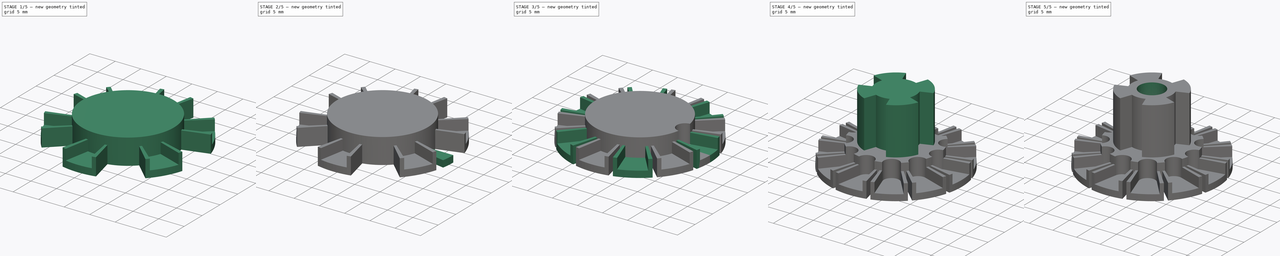
[diagram: build sequence overview — one tinted view per stage of 5, left to right]
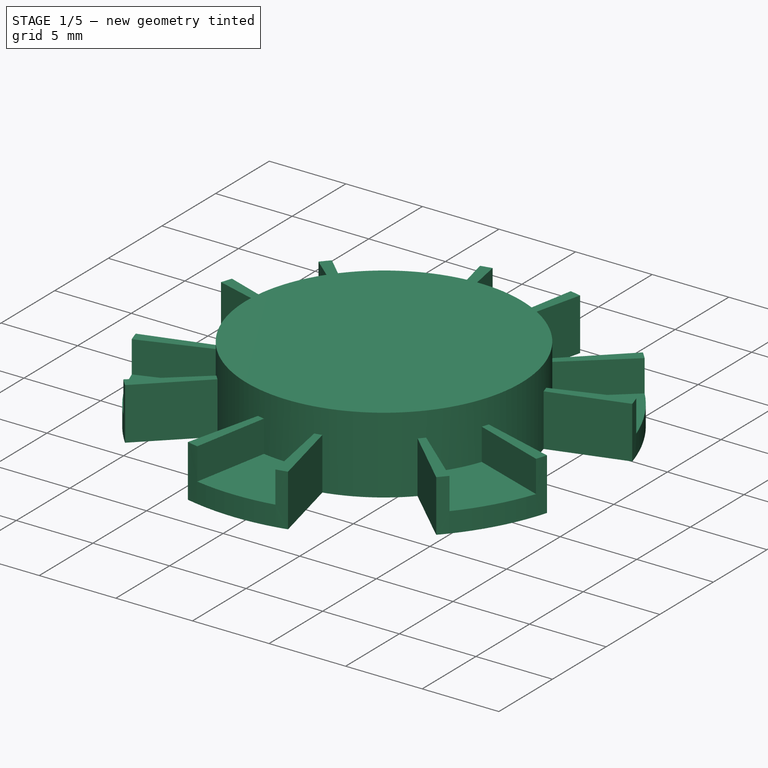
[diagram: stage 1 of 5 — iso view after this stage's code; geometry added in this stage tinted green]
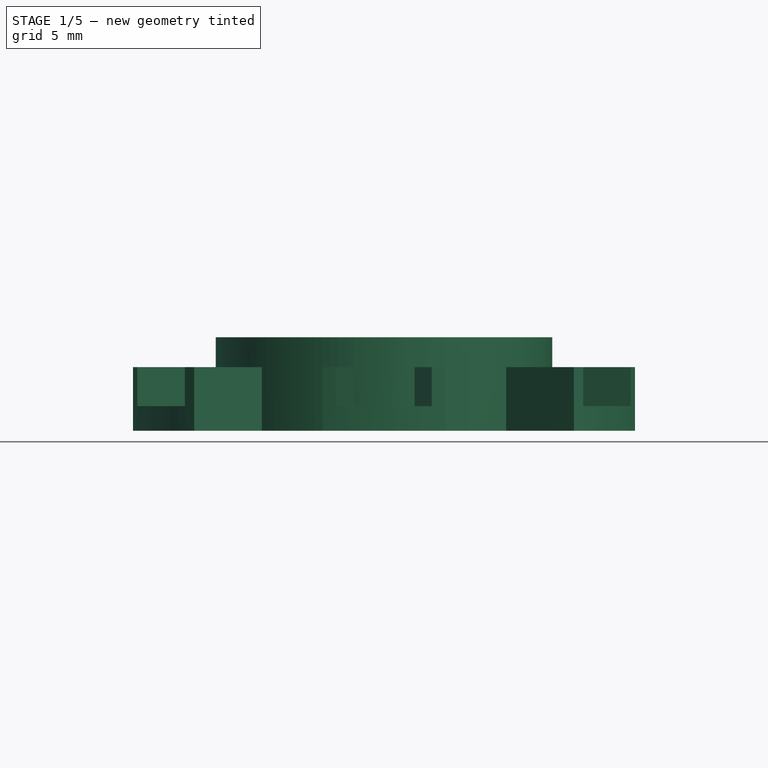
[diagram: stage 1 of 5 — front view after this stage's code; geometry added in this stage tinted green]
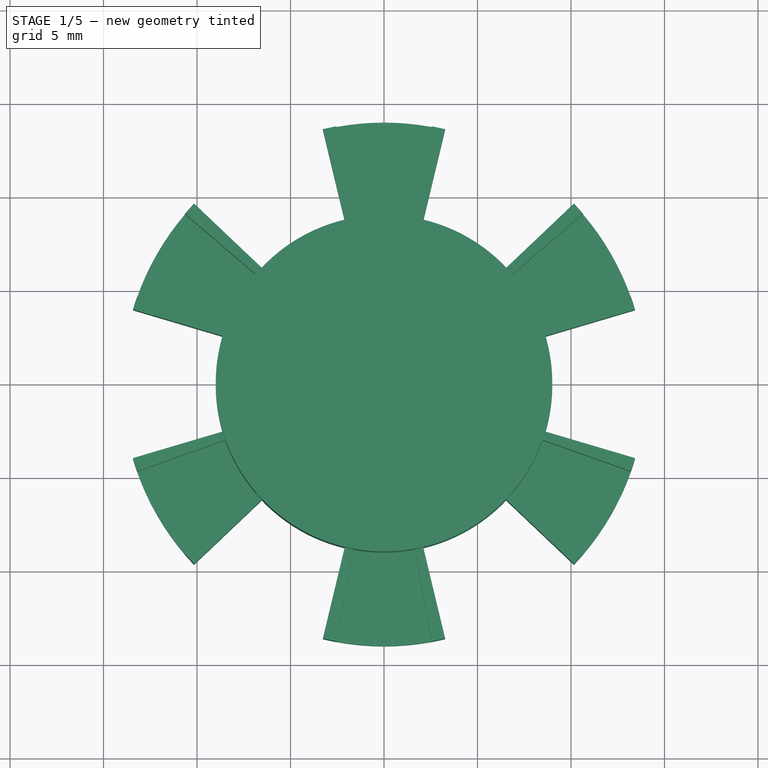
[diagram: stage 1 of 5 — top view after this stage's code; geometry added in this stage tinted green]
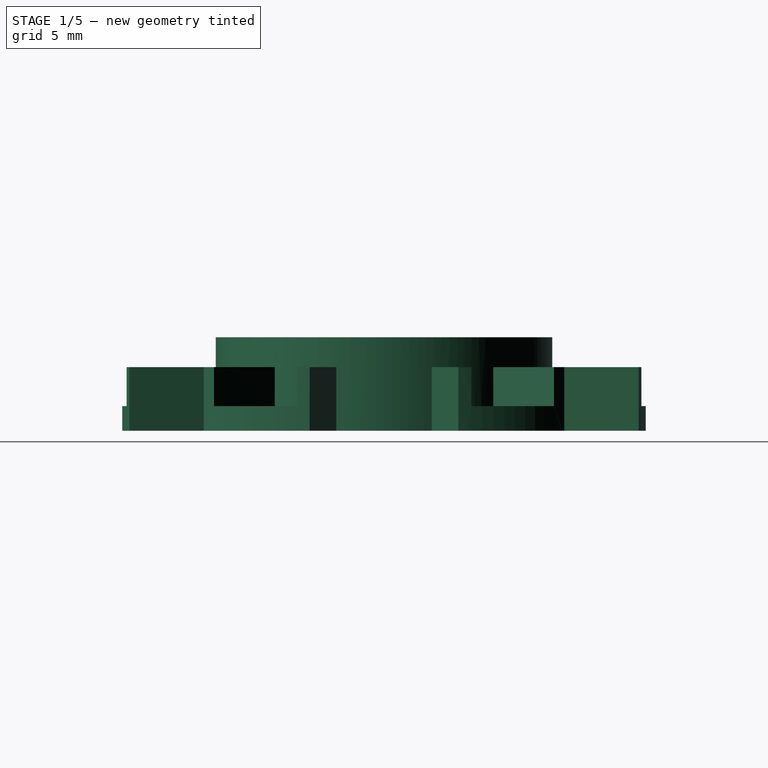
[diagram: stage 1 of 5 — right view after this stage's code; geometry added in this stage tinted green]
FCSTD DOCUMENT  (FreeCAD 2022.520R14555 (Git shallow))
Label: pulley
License: All rights reserved
LicenseURL: http://en.wikipedia.org/wiki/All_rights_reserved
objects: Sketcher::SketchObject×13, PartDesign::Mirrored×6, PartDesign::PolarPattern×6, PartDesign::Plane×5, PartDesign::Revolution×4, PartDesign::Groove×4, PartDesign::Pad×3, PartDesign::Body×2, Spreadsheet::Sheet×1, PartDesign::Hole×1, PartDesign::Pocket×1
note: 95 computed .brp shape members not serialized (recipe doc carries the construction recipe); baked Part::Feature solids carry a one-line shape summary decoded from their .brp

FEATURE [Spreadsheet::Sheet] Spreadsheet
  PythonMode = false
  ShowCells = 0
  TreeRank = 42
  cells = A1=teeth_num; B1(teeth_num)=6; S1=q; A2=joint_width; B2(joint_width)==2.5mm; A3=joint_ledge_angle; B3(joint_ledge_angle)=45; A4=joint_clearance; B4(joint_clearance)==0.2mm; A5=joint_angle_clearance; B5(joint_angle_clearance)=2; A6=ball_grip_wall_angle; B6(ball_grip_wall_angle)=3
FEATURE [Sketcher::SketchObject] Sketch006
  FullyConstrained = true
  MapMode = 5
  Placement = pos=(0,0,5) rot=(0,0,1;0rad)
  Support = -> [PolarPattern]
  TreeRank = 43
  sketch-geometry (1):
    g0: Circle CenterX=0 CenterY=0 CenterZ=0 NormalX=0 NormalY=0 NormalZ=1 AngleXU=0 Radius=6.75
  constraints (2):
    c: Coincident(g0,g-1)
    c: Diameter(g0) = 13.5  'insert_d'
FEATURE [PartDesign::Plane] DatumPlane002
  Length = 10
  MapMode = 5
  MinimumLength = 10
  MinimumWidth = 10
  Placement = pos=(0,0,0) rot=(1,0,0;1.5708rad)
  ResizeMode = 0
  Support = -> [XZ_Plane001]
  TreeRank = 13
  Width = 10
FEATURE [PartDesign::Plane] DatumPlane003
  AttachmentOffset = pos=(0,0,9) rot=(0,0,1;0rad)
  Length = 10
  MapMode = 5
  MinimumLength = 10
  MinimumWidth = 10
  Placement = pos=(9,-2e-15,2e-15) rot=(0.57735,0.57735,0.57735;2.0944rad)
  ResizeMode = 0
  Support = -> [YZ_Plane001]
  TreeRank = 18
  Width = 10
  expr: AttachmentOffset.Base.z = Sketch009.Constraints.cylinder_d / 2
FEATURE [Sketcher::SketchObject] Sketch009
  FullyConstrained = true
  MapMode = 5
  Support = -> [XY_Plane001]
  TreeRank = 11
  sketch-geometry (1):
    g0: Circle CenterX=0 CenterY=0 CenterZ=0 NormalX=0 NormalY=0 NormalZ=1 AngleXU=0 Radius=9
  constraints (2):
    c: Coincident(g0,g-1)
    c: Diameter(g0) = 18  'cylinder_d'
FEATURE [PartDesign::Pad] Pad002
  AddSubType = 0
  AlongSketchNormal = false
  CheckUpToFaceLimits = true
  ClaimChildren = false
  Direction = (0,0,1)
  Fit = 0
  FitJoin = 0
  InnerFit = 0
  InnerFitJoin = 0
  InnerTaperAngle = 0
  InnerTaperAngleRev = 0
  Length = 5
  Length2 = 100
  Linearize = true
  NewSolid = false
  Profile = -> Sketch009
  Suppress = false
  TreeRank = 12
  Type = 0
  _ProfileBasedVersion = 1
FEATURE [Sketcher::SketchObject] Sketch010
  ExternalGeometry = -> [Pad002]
  FullyConstrained = true
  MapMode = 5
  Placement = pos=(0,0,0) rot=(1,0,0;1.5708rad)
  Support = -> [DatumPlane002]
  TreeRank = 14
  sketch-geometry (4):
    g0: LineSegment StartX=9 StartY=1.32 StartZ=0 EndX=14 EndY=1.32 EndZ=0
    g1: LineSegment StartX=14 StartY=1.32 StartZ=0 EndX=14 EndY=0 EndZ=0
    g2: LineSegment StartX=14 StartY=0 StartZ=0 EndX=9 EndY=0 EndZ=0
    g3: LineSegment StartX=9 StartY=0 StartZ=0 EndX=9 EndY=1.32 EndZ=0
  constraints (11):
    c: PointOnObject(g0,g-3)
    c: Horizontal(g0)
    c: Coincident(g0,g1)
    c: PointOnObject(g1,g-1)
    c: Vertical(g1)
    c: Coincident(g1,g2)
    c: Coincident(g2,g-3)
    c: Coincident(g2,g3)
    c: Coincident(g3,g0)
    c: Distance(g1) = 1.32
    c: Distance(g0) = 5
FEATURE [PartDesign::Revolution] Revolution002
  AddSubType = 0
  Angle = 10.5
  Axis = (0,-2e-16,1)
  Base = (0,0,0)
  BaseFeature = -> Pad002
  ClaimChildren = false
  Fit = 0
  FitJoin = 0
  InnerFit = 0
  InnerFitJoin = 0
  Linearize = true
  NewSolid = false
  Profile = -> Sketch010
  ReferenceAxis = -> Sketch010 [V_Axis]
  Reversed = true
  Suppress = false
  TreeRank = 15
  _ProfileBasedVersion = 1
FEATURE [Sketcher::SketchObject] Sketch011
  ExternalGeometry = -> [Revolution002]
  FullyConstrained = false
  MapMode = 5
  Placement = pos=(0,1e-16,0) rot=(0.991662,-0.091121,-0.091121;1.57917rad)
  Support = -> [Revolution002]
  TreeRank = 16
  sketch-geometry (4):
    g0: LineSegment StartX=9 StartY=-1e-16 StartZ=0 EndX=14 EndY=-1e-16 EndZ=0
    g1: LineSegment StartX=14 StartY=-1e-16 StartZ=0 EndX=14 EndY=3.4 EndZ=0
    g2: LineSegment StartX=14 StartY=3.4 StartZ=0 EndX=9 EndY=3.4 EndZ=0
    g3: LineSegment StartX=9 StartY=3.4 StartZ=0 EndX=9 EndY=0 EndZ=0
  constraints (10):
    c: Coincident(g0,g1)
    c: Coincident(g1,g2)
    c: Coincident(g2,g3)
    c: Coincident(g3,g0)
    c: Horizontal(g0)
    c: Horizontal(g2)
    c: Vertical(g1)
    c: Coincident(g0,g-5)
    c: PointOnObject(g-4,g1)
    c: Distance(g1) = 3.4
FEATURE [PartDesign::Revolution] Revolution003
  AddSubType = 0
  Angle = 3
  Axis = (0,-2e-16,1)
  Base = (0,1e-16,0)
  BaseFeature = -> Revolution002
  ClaimChildren = false
  Fit = 0
  FitJoin = 0
  InnerFit = 0
  InnerFitJoin = 0
  Linearize = true
  NewSolid = false
  Profile = -> Sketch011
  ReferenceAxis = -> Sketch011 [V_Axis]
  Reversed = true
  Suppress = false
  TreeRank = 17
  _ProfileBasedVersion = 1
  expr: Angle = Spreadsheet.ball_grip_wall_angle
FEATURE [PartDesign::Mirrored] Mirrored002
  AddSubType = 0
  BaseFeature = -> Revolution003
  CopyShape = false
  MirrorPlane = -> XZ_Plane001
  NewSolid = false
  OriginalSubs = -> [Revolution003,Revolution002]
  Originals = -> [Revolution003,Revolution002]
  ParallelTransform = true
  SubTransform = true
  Suppress = false
  TreeRank = 40
  _Version = 3
FEATURE [PartDesign::PolarPattern] PolarPattern002
  AddSubType = 0
  Angle = 360
  Axis = -> Z_Axis001
  BaseFeature = -> Mirrored002
  CopyShape = false
  NewSolid = false
  Occurrences = 6
  OriginalSubs = -> [Revolution003,Revolution002,Mirrored002]
  Originals = -> [Revolution003,Revolution002,Mirrored002]
  ParallelTransform = true
  SubTransform = true
  Suppress = false
  TransformOffset = pos=(0,0,0) rot=(0,0,1;0.523599rad)
  TreeRank = 41
  _Version = 3
  expr: Occurrences = Spreadsheet.teeth_num
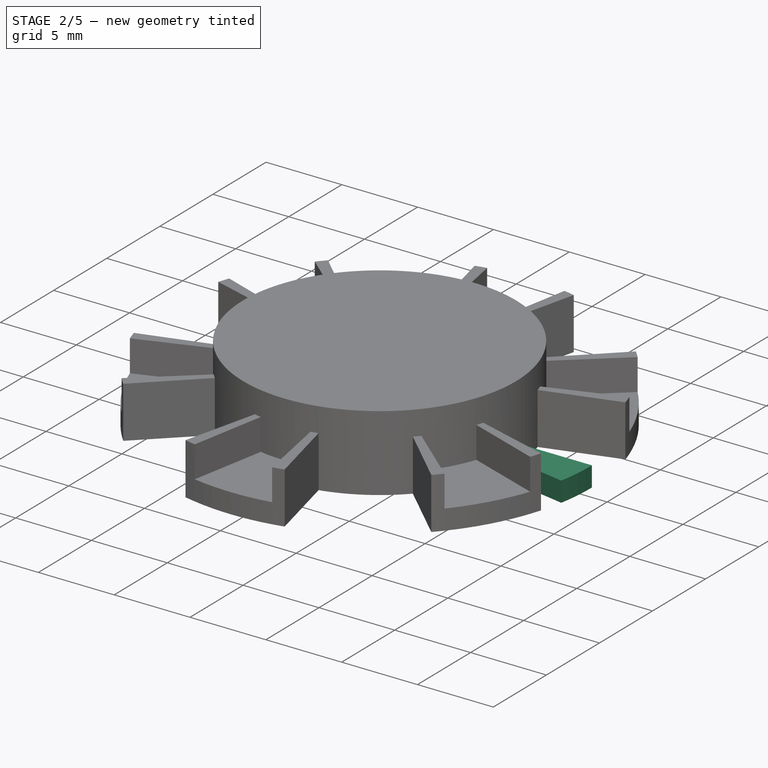
[diagram: stage 2 of 5 — iso view after this stage's code; geometry added in this stage tinted green]
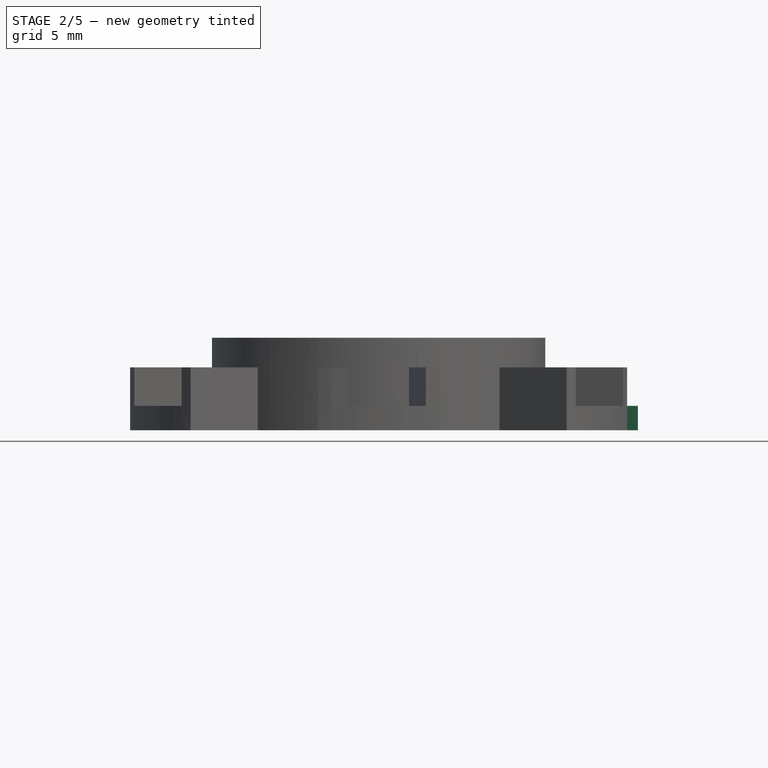
[diagram: stage 2 of 5 — front view after this stage's code; geometry added in this stage tinted green]
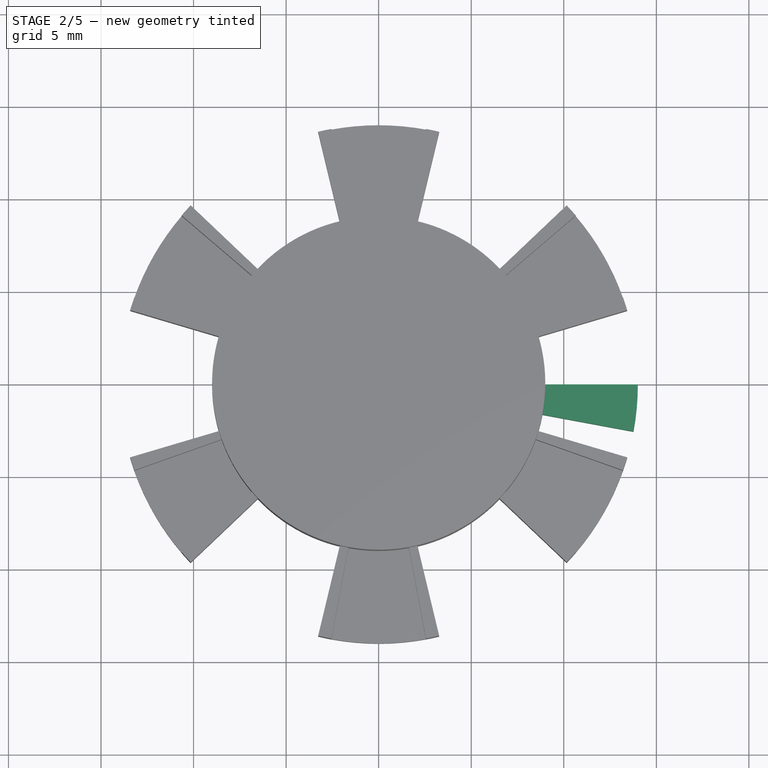
[diagram: stage 2 of 5 — top view after this stage's code; geometry added in this stage tinted green]
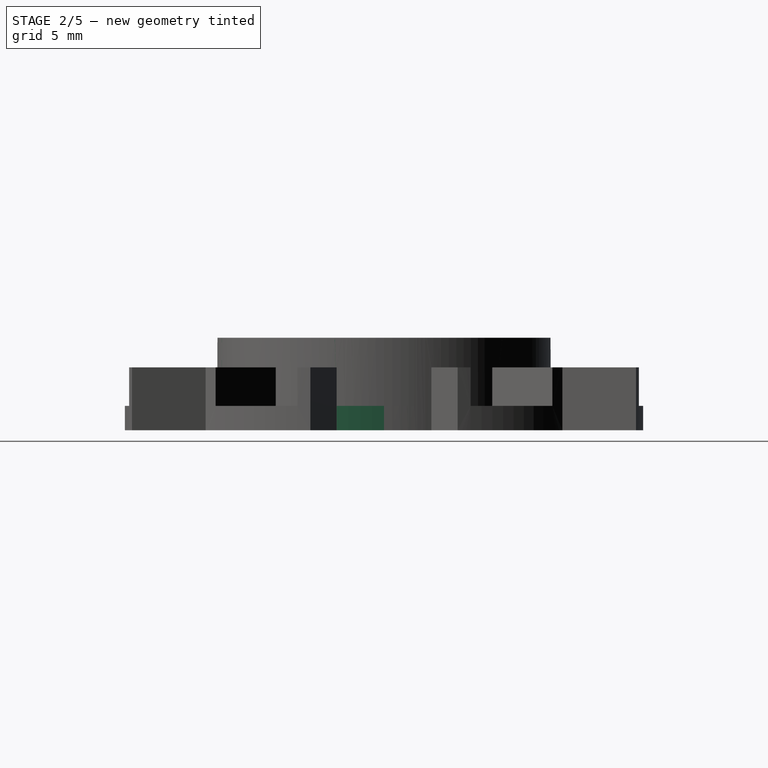
[diagram: stage 2 of 5 — right view after this stage's code; geometry added in this stage tinted green]
FEATURE [Sketcher::SketchObject] Sketch
  FullyConstrained = true
  MapMode = 5
  Support = -> [XY_Plane]
  TreeRank = 11
  sketch-geometry (1):
    g0: Circle CenterX=0 CenterY=0 CenterZ=0 NormalX=0 NormalY=0 NormalZ=1 AngleXU=0 Radius=9
  constraints (2):
    c: Coincident(g0,g-1)
    c: Diameter(g0) = 18  'cylinder_d'
FEATURE [PartDesign::Pad] Pad
  AddSubType = 0
  AlongSketchNormal = false
  CheckUpToFaceLimits = true
  ClaimChildren = false
  Direction = (0,0,1)
  Fit = 0
  FitJoin = 0
  InnerFit = 0
  InnerFitJoin = 0
  InnerTaperAngle = 0
  InnerTaperAngleRev = 0
  Length = 5
  Length2 = 100
  Linearize = true
  NewSolid = false
  Profile = -> Sketch
  Suppress = false
  TreeRank = 12
  Type = 0
  _ProfileBasedVersion = 1
FEATURE [PartDesign::Plane] DatumPlane
  Length = 10
  MapMode = 5
  MinimumLength = 10
  MinimumWidth = 10
  Placement = pos=(0,0,0) rot=(1,0,0;1.5708rad)
  ResizeMode = 0
  Support = -> [XZ_Plane]
  TreeRank = 13
  Width = 10
FEATURE [Sketcher::SketchObject] Sketch001
  ExternalGeometry = -> [Pad]
  FullyConstrained = true
  MapMode = 5
  Placement = pos=(0,0,0) rot=(1,0,0;1.5708rad)
  Support = -> [DatumPlane]
  TreeRank = 14
  sketch-geometry (4):
    g0: LineSegment StartX=9 StartY=1.32 StartZ=0 EndX=14 EndY=1.32 EndZ=0
    g1: LineSegment StartX=14 StartY=1.32 StartZ=0 EndX=14 EndY=0 EndZ=0
    g2: LineSegment StartX=14 StartY=0 StartZ=0 EndX=9 EndY=0 EndZ=0
    g3: LineSegment StartX=9 StartY=0 StartZ=0 EndX=9 EndY=1.32 EndZ=0
  constraints (11):
    c: PointOnObject(g0,g-3)
    c: Horizontal(g0)
    c: Coincident(g0,g1)
    c: PointOnObject(g1,g-1)
    c: Vertical(g1)
    c: Coincident(g1,g2)
    c: Coincident(g2,g-3)
    c: Coincident(g2,g3)
    c: Coincident(g3,g0)
    c: Distance(g1) = 1.32
    c: Distance(g0) = 5
FEATURE [PartDesign::Revolution] Revolution
  AddSubType = 0
  Angle = 10.5
  Axis = (0,-2e-16,1)
  Base = (0,0,0)
  BaseFeature = -> Pad
  ClaimChildren = false
  Fit = 0
  FitJoin = 0
  InnerFit = 0
  InnerFitJoin = 0
  Linearize = true
  NewSolid = false
  Profile = -> Sketch001
  ReferenceAxis = -> Sketch001 [V_Axis]
  Reversed = true
  Suppress = false
  TreeRank = 15
  _ProfileBasedVersion = 1
FEATURE [Sketcher::SketchObject] Sketch012
  ExternalGeometry = -> [Revolution003]
  FullyConstrained = true
  MapMode = 5
  Placement = pos=(0,0,0) rot=(1,0,0;1.5708rad)
  Support = -> [XZ_Plane001]
  TreeRank = 38
  sketch-geometry (4):
    g0: LineSegment StartX=9 StartY=5 StartZ=0 EndX=10.64 EndY=5 EndZ=0
    g1: LineSegment StartX=10.64 StartY=5 StartZ=0 EndX=10.64 EndY=1.32 EndZ=0
    g2: LineSegment StartX=10.64 StartY=1.32 StartZ=0 EndX=9 EndY=1.32 EndZ=0
    g3: LineSegment StartX=9 StartY=1.32 StartZ=0 EndX=9 EndY=5 EndZ=0
  constraints (10):
    c: Coincident(g0,g1)
    c: Coincident(g1,g2)
    c: Coincident(g2,g3)
    c: Coincident(g3,g0)
    c: Horizontal(g0)
    c: Horizontal(g2)
    c: Vertical(g1)
    c: Coincident(g0,g-3)
    c: Coincident(g2,g-3)
    c: Distance(g2) = 1.64
FEATURE [PartDesign::Groove] Groove002
  AddSubType = 1
  Angle = 180
  Axis = (0,0,1)
  Base = (9,0,0)
  BaseFeature = -> PolarPattern002
  ClaimChildren = false
  Fit = 0
  FitJoin = 0
  InnerFit = 0
  InnerFitJoin = 0
  Linearize = true
  NewSolid = false
  Profile = -> Sketch012
  ReferenceAxis = -> Revolution003 [Edge6]
  Reversed = true
  Suppress = false
  TreeRank = 39
  _ProfileBasedVersion = 1
FEATURE [PartDesign::Body] Body
  AutoGroupSolids = false
  ClaimAllChildren = false
  ExportMode = 0
  Group = -> [Sketch,Pad,DatumPlane,Sketch001,Revolution,Sketch002,Revolution001,DatumPlane001,Mirrored,PolarPattern,Sketch005,Groove,Mirrored004,Sketch006,PolarPattern004,Pad001,Sketch007,Groove001,Mirrored001,PolarPattern001,Sketch016,Hole]
  Origin = -> Origin
  Tip = -> Hole
  TreeRank = 34
  _ExportChildren = -> [Pad,DatumPlane,Revolution,Revolution001,DatumPlane001,Mirrored,PolarPattern,Groove,Mirrored004,PolarPattern004,Pad001,Groove001,Mirrored001,PolarPattern001,Hole]
  _GroupVersion = 1
FEATURE [PartDesign::Mirrored] Mirrored005
  AddSubType = 0
  BaseFeature = -> Groove002
  CopyShape = false
  MirrorPlane = -> XZ_Plane001
  NewSolid = false
  OriginalSubs = -> [Groove002]
  Originals = -> [Groove002]
  ParallelTransform = true
  SubTransform = true
  Suppress = false
  TreeRank = 65
  _Version = 3
FEATURE [PartDesign::PolarPattern] PolarPattern005
  AddSubType = 0
  Angle = 360
  Axis = -> Z_Axis001
  BaseFeature = -> Mirrored005
  CopyShape = false
  NewSolid = false
  Occurrences = 12
  OriginalSubs = -> [Mirrored005,Groove002]
  Originals = -> [Mirrored005,Groove002]
  ParallelTransform = true
  SubTransform = true
  Suppress = false
  TreeRank = 66
  _Version = 3
  expr: Occurrences = Spreadsheet.teeth_num * 2
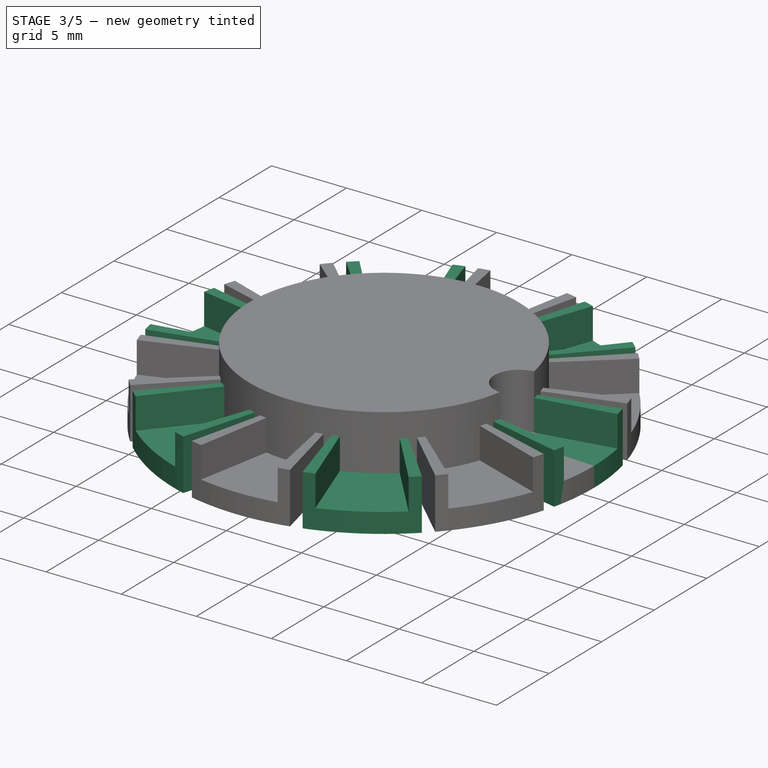
[diagram: stage 3 of 5 — iso view after this stage's code; geometry added in this stage tinted green]
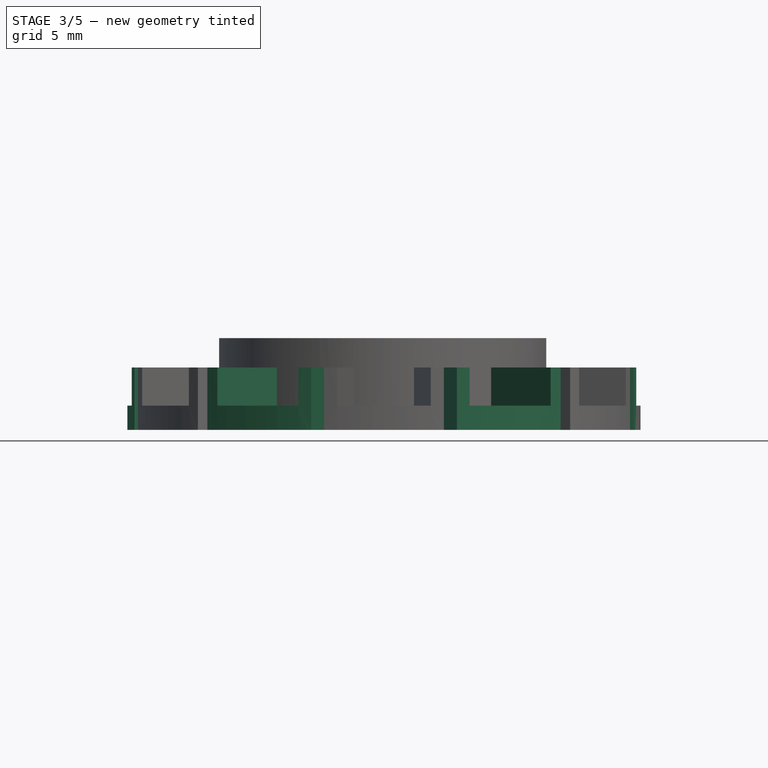
[diagram: stage 3 of 5 — front view after this stage's code; geometry added in this stage tinted green]
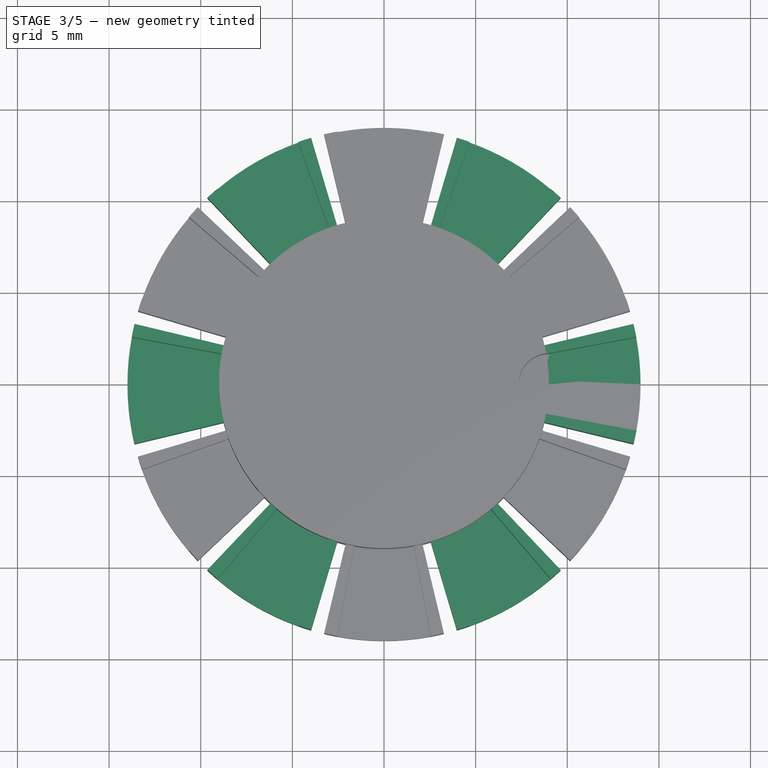
[diagram: stage 3 of 5 — top view after this stage's code; geometry added in this stage tinted green]
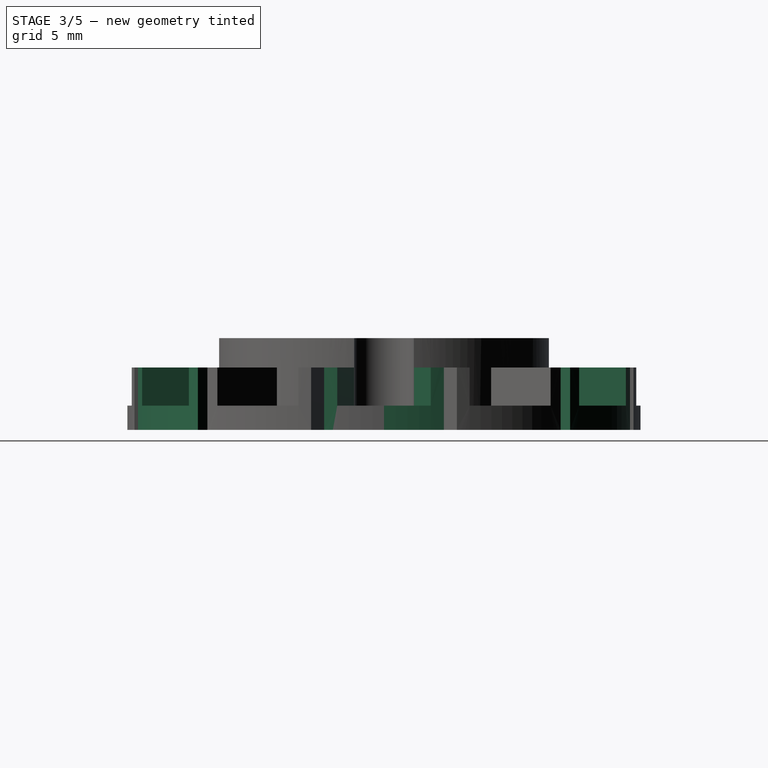
[diagram: stage 3 of 5 — right view after this stage's code; geometry added in this stage tinted green]
FEATURE [Sketcher::SketchObject] Sketch002
  ExternalGeometry = -> [Revolution]
  FullyConstrained = false
  MapMode = 5
  Placement = pos=(0,1e-16,0) rot=(0.991662,-0.091121,-0.091121;1.57917rad)
  Support = -> [Revolution]
  TreeRank = 16
  sketch-geometry (4):
    g0: LineSegment StartX=9 StartY=-1e-16 StartZ=0 EndX=14 EndY=-1e-16 EndZ=0
    g1: LineSegment StartX=14 StartY=-1e-16 StartZ=0 EndX=14 EndY=3.4 EndZ=0
    g2: LineSegment StartX=14 StartY=3.4 StartZ=0 EndX=9 EndY=3.4 EndZ=0
    g3: LineSegment StartX=9 StartY=3.4 StartZ=0 EndX=9 EndY=0 EndZ=0
  constraints (10):
    c: Coincident(g0,g1)
    c: Coincident(g1,g2)
    c: Coincident(g2,g3)
    c: Coincident(g3,g0)
    c: Horizontal(g0)
    c: Horizontal(g2)
    c: Vertical(g1)
    c: Coincident(g0,g-5)
    c: PointOnObject(g-4,g1)
    c: Distance(g1) = 3.4
FEATURE [PartDesign::Revolution] Revolution001
  AddSubType = 0
  Angle = 3
  Axis = (0,-2e-16,1)
  Base = (0,1e-16,0)
  BaseFeature = -> Revolution
  ClaimChildren = false
  Fit = 0
  FitJoin = 0
  InnerFit = 0
  InnerFitJoin = 0
  Linearize = true
  NewSolid = false
  Profile = -> Sketch002
  ReferenceAxis = -> Sketch002 [V_Axis]
  Reversed = true
  Suppress = false
  TreeRank = 17
  _ProfileBasedVersion = 1
  expr: Angle = Spreadsheet.ball_grip_wall_angle
FEATURE [PartDesign::Plane] DatumPlane001
  AttachmentOffset = pos=(0,0,9) rot=(0,0,1;0rad)
  Length = 17.9939
  MapMode = 5
  MinimumLength = 10
  MinimumWidth = 10
  Placement = pos=(9,-2e-15,2e-15) rot=(0.57735,0.57735,0.57735;2.0944rad)
  ResizeMode = 0
  Support = -> [YZ_Plane]
  TreeRank = 18
  Width = 10
  expr: AttachmentOffset.Base.z = Sketch.Constraints.cylinder_d / 2
FEATURE [Sketcher::SketchObject] Sketch005
  ExternalGeometry = -> [Revolution001]
  FullyConstrained = true
  MapMode = 5
  Placement = pos=(0,0,0) rot=(1,0,0;1.5708rad)
  Support = -> [XZ_Plane]
  TreeRank = 38
  sketch-geometry (4):
    g0: LineSegment StartX=9 StartY=5 StartZ=0 EndX=10.64 EndY=5 EndZ=0
    g1: LineSegment StartX=10.64 StartY=5 StartZ=0 EndX=10.64 EndY=1.32 EndZ=0
    g2: LineSegment StartX=10.64 StartY=1.32 StartZ=0 EndX=9 EndY=1.32 EndZ=0
    g3: LineSegment StartX=9 StartY=1.32 StartZ=0 EndX=9 EndY=5 EndZ=0
  constraints (10):
    c: Coincident(g0,g1)
    c: Coincident(g1,g2)
    c: Coincident(g2,g3)
    c: Coincident(g3,g0)
    c: Horizontal(g0)
    c: Horizontal(g2)
    c: Vertical(g1)
    c: Coincident(g0,g-3)
    c: Coincident(g2,g-3)
    c: Distance(g2) = 1.64
FEATURE [PartDesign::Mirrored] Mirrored
  AddSubType = 0
  BaseFeature = -> Revolution001
  CopyShape = false
  MirrorPlane = -> XZ_Plane
  NewSolid = false
  OriginalSubs = -> [Revolution001,Revolution]
  Originals = -> [Revolution001,Revolution]
  ParallelTransform = true
  SubTransform = true
  Suppress = false
  TreeRank = 40
  _Version = 3
FEATURE [PartDesign::PolarPattern] PolarPattern
  AddSubType = 0
  Angle = 360
  Axis = -> Z_Axis
  BaseFeature = -> Mirrored
  CopyShape = false
  NewSolid = false
  Occurrences = 6
  OriginalSubs = -> [Revolution001,Revolution,Mirrored]
  Originals = -> [Revolution001,Revolution,Mirrored]
  ParallelTransform = true
  SubTransform = true
  Suppress = false
  TreeRank = 41
  _Version = 3
  expr: Occurrences = Spreadsheet.teeth_num
FEATURE [PartDesign::Groove] Groove
  AddSubType = 1
  Angle = 180
  Axis = (0,0,1)
  Base = (9,0,0)
  BaseFeature = -> PolarPattern
  ClaimChildren = false
  Fit = 0
  FitJoin = 0
  InnerFit = 0
  InnerFitJoin = 0
  Linearize = true
  NewSolid = false
  Profile = -> Sketch005
  ReferenceAxis = -> Revolution001 [Edge6]
  Reversed = true
  Suppress = false
  TreeRank = 39
  _ProfileBasedVersion = 1
FEATURE [PartDesign::Plane] DatumPlane004
  AttachmentOffset = pos=(0,0,0) rot=(0,1,0;0.785398rad)
  Length = 38.6555
  MapMode = 5
  MinimumLength = 10
  MinimumWidth = 10
  Placement = pos=(0,0,0) rot=(0.862856,0.357407,0.357407;1.71777rad)
  ResizeMode = 0
  Support = -> [XZ_Plane001]
  TreeRank = 54
  Width = 10
FEATURE [Sketcher::SketchObject] Sketch014
  FullyConstrained = true
  MapMode = 5
  Placement = pos=(0,0,0) rot=(0.862856,0.357407,0.357407;1.71777rad)
  Support = -> [DatumPlane004]
  TreeRank = 55
  expr: Constraints[11] = Pad002.Length
  expr: Constraints[8] = Spreadsheet.joint_width + Spreadsheet.joint_clearance
  expr: Constraints[9] = Sketch006.Constraints.insert_d / 2
  sketch-geometry (4):
    g0: LineSegment StartX=6.75 StartY=5 StartZ=0 EndX=4.05 EndY=5 EndZ=0
    g1: LineSegment StartX=4.05 StartY=5 StartZ=0 EndX=4.05 EndY=0 EndZ=0
    g2: LineSegment StartX=4.05 StartY=0 StartZ=0 EndX=6.75 EndY=0 EndZ=0
    g3: LineSegment StartX=6.75 StartY=0 StartZ=0 EndX=6.75 EndY=5 EndZ=0
  constraints (12):
    c: Coincident(g0,g1)
    c: Coincident(g1,g2)
    c: Coincident(g2,g3)
    c: Coincident(g3,g0)
    c: Horizontal(g0)
    c: Horizontal(g2)
    c: Vertical(g1)
    c: Vertical(g3)
    c: Distance(g0) = 2.7
    c: DistanceX(g-2,g0) = 6.75
    c: PointOnObject(g2,g-1)
    c: Distance(g3) = 5
FEATURE [PartDesign::Mirrored] Mirrored004
  AddSubType = 0
  BaseFeature = -> Groove
  CopyShape = false
  MirrorPlane = -> XZ_Plane
  NewSolid = false
  OriginalSubs = -> [Groove]
  Originals = -> [Groove]
  ParallelTransform = true
  SubTransform = true
  Suppress = false
  TreeRank = 63
  _Version = 3
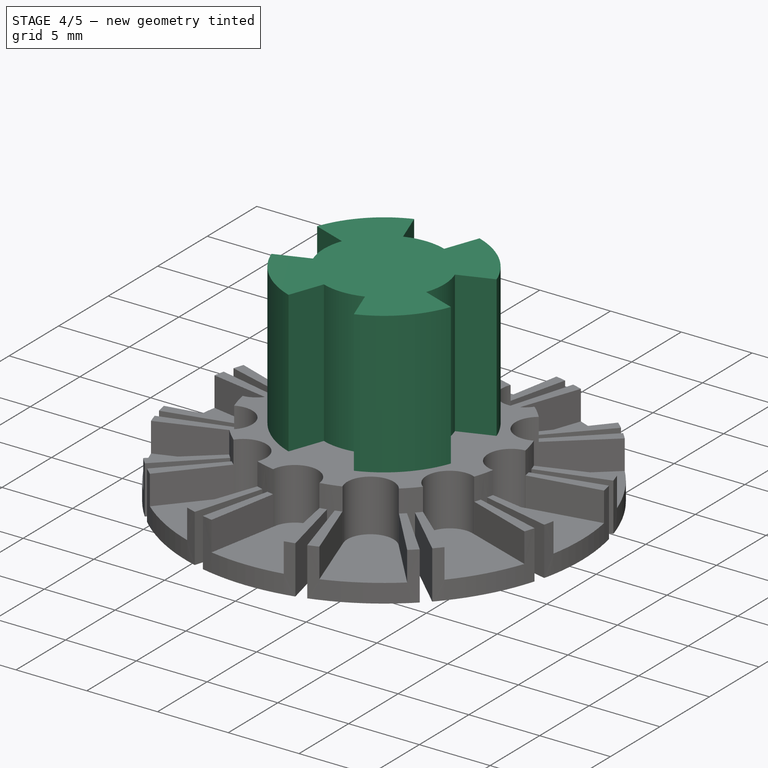
[diagram: stage 4 of 5 — iso view after this stage's code; geometry added in this stage tinted green]
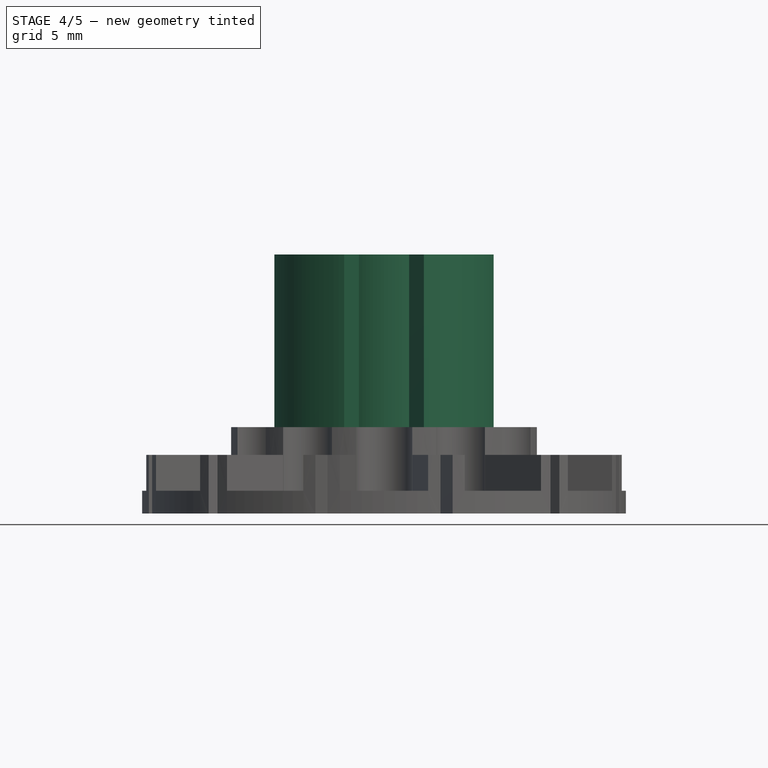
[diagram: stage 4 of 5 — front view after this stage's code; geometry added in this stage tinted green]
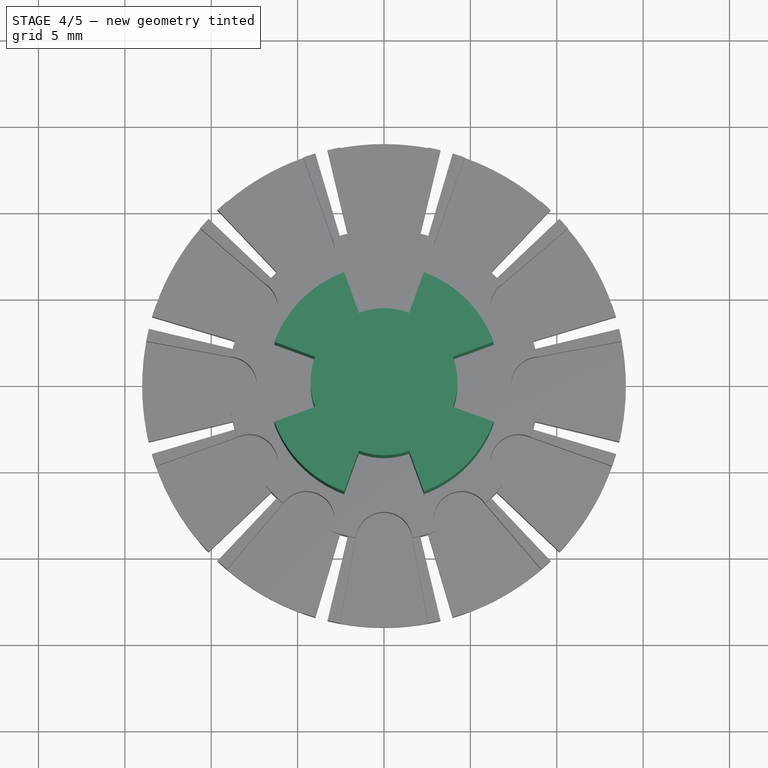
[diagram: stage 4 of 5 — top view after this stage's code; geometry added in this stage tinted green]
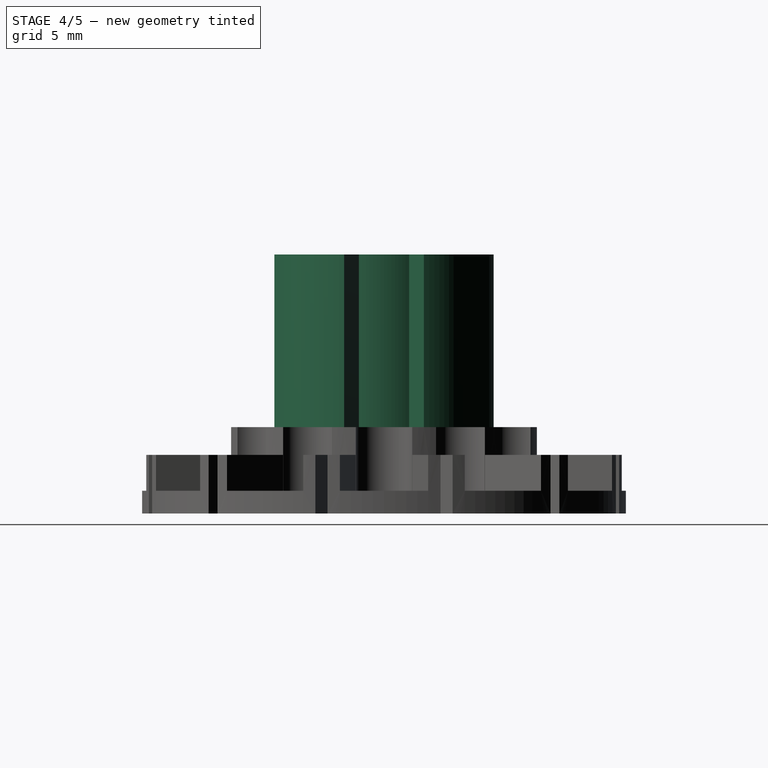
[diagram: stage 4 of 5 — right view after this stage's code; geometry added in this stage tinted green]
FEATURE [PartDesign::PolarPattern] PolarPattern004
  AddSubType = 0
  Angle = 360
  Axis = -> Z_Axis
  BaseFeature = -> Mirrored004
  CopyShape = false
  NewSolid = false
  Occurrences = 12
  OriginalSubs = -> [Mirrored004,Groove]
  Originals = -> [Mirrored004,Groove]
  ParallelTransform = true
  SubTransform = true
  Suppress = false
  TreeRank = 64
  _Version = 3
  expr: Occurrences = Spreadsheet.teeth_num * 2
FEATURE [PartDesign::Pad] Pad001
  AddSubType = 0
  AlongSketchNormal = false
  BaseFeature = -> PolarPattern004
  CheckUpToFaceLimits = true
  ClaimChildren = false
  Direction = (0,0,1)
  Fit = 0
  FitJoin = 0
  InnerFit = 0
  InnerFitJoin = 0
  InnerTaperAngle = 0
  InnerTaperAngleRev = 0
  Length = 10
  Length2 = 100
  Linearize = true
  NewSolid = false
  Profile = -> Sketch006
  Suppress = false
  TreeRank = 44
  Type = 0
  _ProfileBasedVersion = 1
FEATURE [Sketcher::SketchObject] Sketch007
  ExternalGeometry = -> [Pad001]
  FullyConstrained = true
  MapMode = 5
  Placement = pos=(0,0,0) rot=(1,0,0;1.5708rad)
  Support = -> [XZ_Plane]
  TreeRank = 45
  expr: Constraints[9] = Spreadsheet.joint_width
  sketch-geometry (4):
    g0: LineSegment StartX=-6.75 StartY=15 StartZ=0 EndX=-4.25 EndY=15 EndZ=0
    g1: LineSegment StartX=-4.25 StartY=15 StartZ=0 EndX=-4.25 EndY=5 EndZ=0
    g2: LineSegment StartX=-4.25 StartY=5 StartZ=0 EndX=-6.75 EndY=5 EndZ=0
    g3: LineSegment StartX=-6.75 StartY=5 StartZ=0 EndX=-6.75 EndY=15 EndZ=0
  constraints (11):
    c: Coincident(g0,g1)
    c: Coincident(g1,g2)
    c: Coincident(g2,g3)
    c: Coincident(g3,g0)
    c: Horizontal(g0)
    c: Horizontal(g2)
    c: Vertical(g1)
    c: Vertical(g3)
    c: Coincident(g0,g-3)
    c: Distance(g0) = 2.5
    c: PointOnObject(g1,g-4)
FEATURE [PartDesign::Groove] Groove001
  AddSubType = 1
  Angle = 20
  Axis = (0,-2e-16,1)
  Base = (0,0,0)
  BaseFeature = -> Pad001
  ClaimChildren = false
  Fit = 0
  FitJoin = 0
  InnerFit = 0
  InnerFitJoin = 0
  Linearize = true
  NewSolid = false
  Profile = -> Sketch007
  ReferenceAxis = -> Sketch007 [V_Axis]
  Reversed = true
  Suppress = false
  TreeRank = 46
  _ProfileBasedVersion = 1
FEATURE [PartDesign::Mirrored] Mirrored001
  AddSubType = 0
  BaseFeature = -> Groove001
  CopyShape = false
  MirrorPlane = -> XZ_Plane
  NewSolid = false
  OriginalSubs = -> [Groove001]
  Originals = -> [Groove001]
  ParallelTransform = true
  SubTransform = true
  Suppress = false
  TreeRank = 47
  _Version = 3
FEATURE [PartDesign::PolarPattern] PolarPattern001
  AddSubType = 0
  Angle = 360
  Axis = -> Z_Axis
  BaseFeature = -> Mirrored001
  CopyShape = false
  NewSolid = false
  Occurrences = 4
  OriginalSubs = -> [Mirrored001,Groove001]
  Originals = -> [Mirrored001,Groove001]
  ParallelTransform = true
  SubTransform = true
  Suppress = false
  TreeRank = 48
  _Version = 3
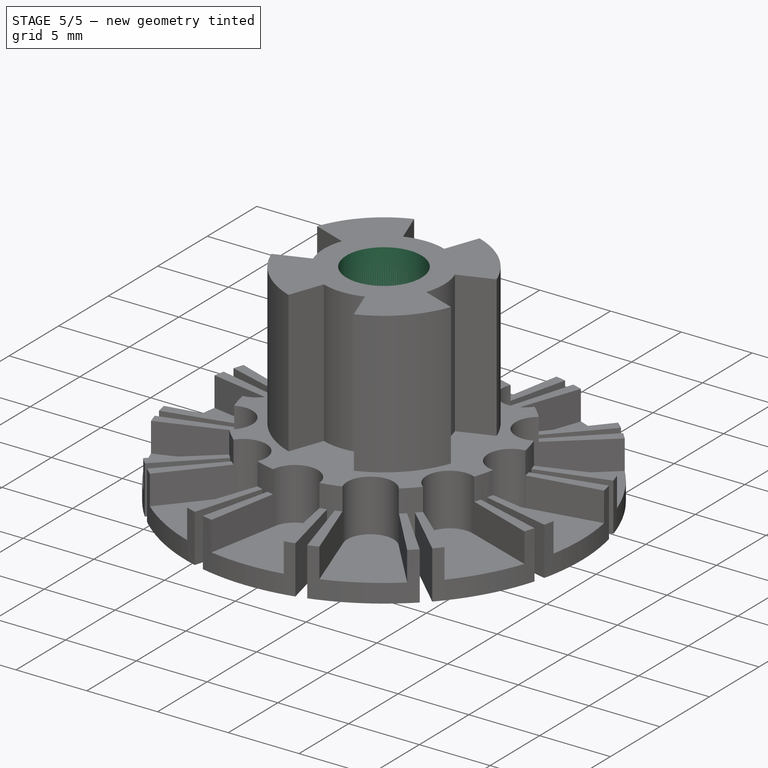
[diagram: stage 5 of 5 — iso view after this stage's code; geometry added in this stage tinted green]
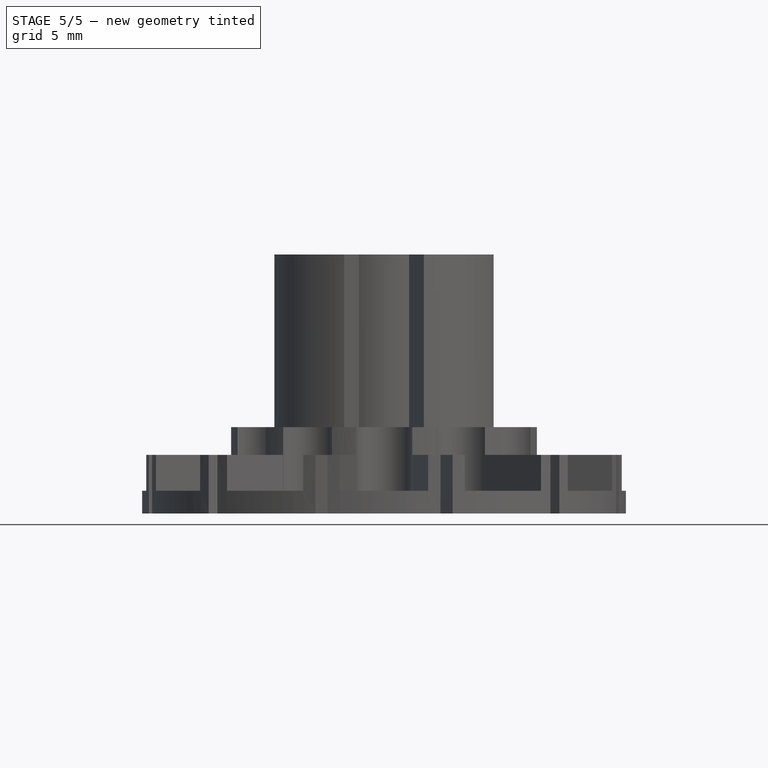
[diagram: stage 5 of 5 — front view after this stage's code; geometry added in this stage tinted green]
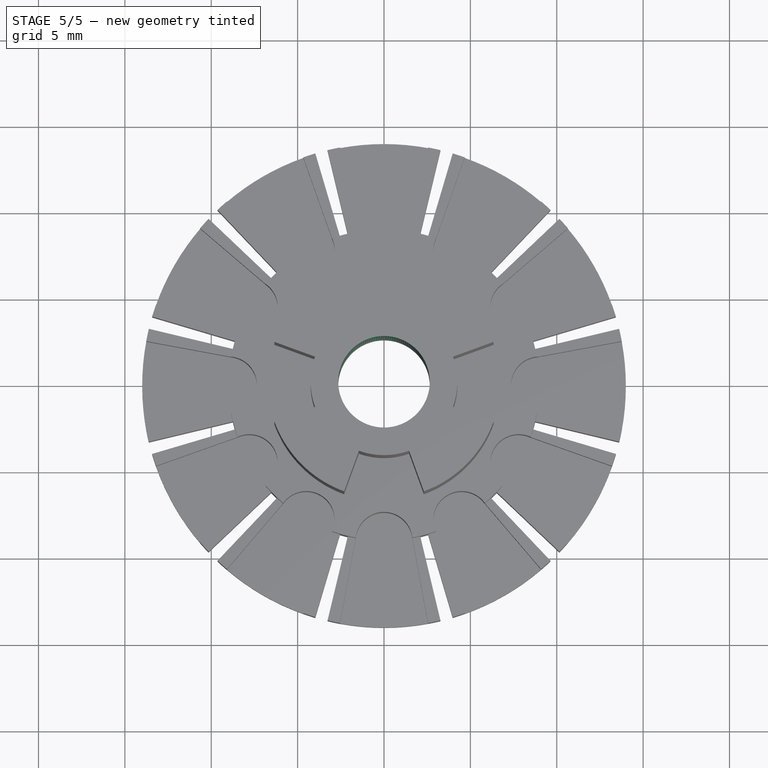
[diagram: stage 5 of 5 — top view after this stage's code; geometry added in this stage tinted green]
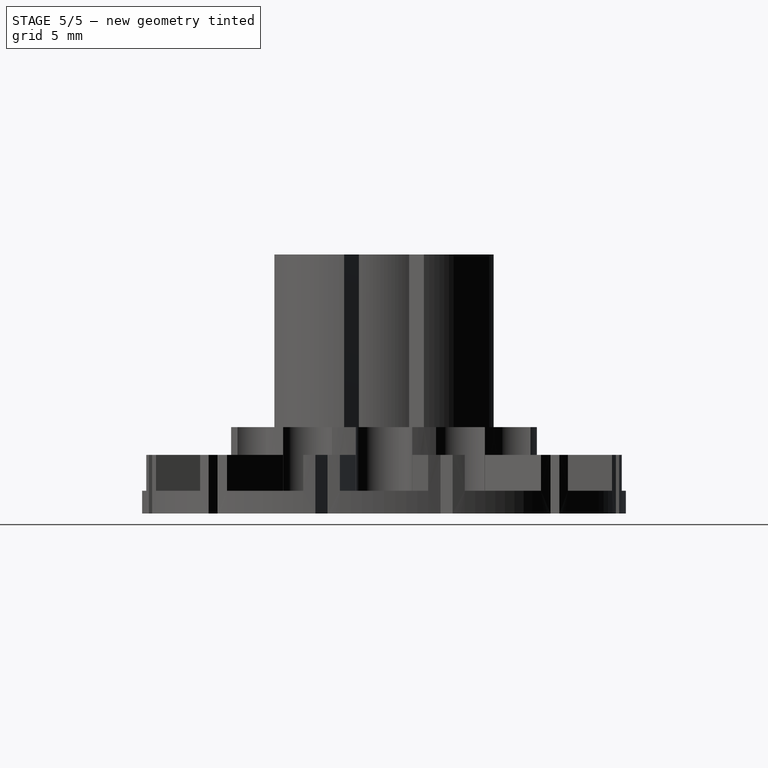
[diagram: stage 5 of 5 — right view after this stage's code; geometry added in this stage tinted green]
FEATURE [Sketcher::SketchObject] Sketch016
  FullyConstrained = false
  MapMode = 5
  Placement = pos=(0,0,15) rot=(0,0,1;0rad)
  Support = -> [PolarPattern001]
  TreeRank = 61
  sketch-geometry (1):
    g0: Circle CenterX=0 CenterY=0 CenterZ=0 NormalX=0 NormalY=0 NormalZ=1 AngleXU=0 Radius=3.15845
  constraints (1):
    c: Coincident(g0,g-1)
FEATURE [PartDesign::Hole] Hole
  AddSubType = 1
  BaseFeature = -> PolarPattern001
  ClaimChildren = false
  CustomThreadClearance = 0
  Depth = 25
  DepthType = 1
  Diameter = 5.3
  DrillForDepth = false
  DrillPoint = 1
  DrillPointAngle = 118
  Fit = 0
  FitJoin = 0
  HoleCutCountersinkAngle = 90
  HoleCutCustomValues = false
  HoleCutDepth = 0
  HoleCutDiameter = 6.1
  HoleCutType = 0
  InnerFit = 0
  InnerFitJoin = 0
  Linearize = true
  ModelThread = false
  NewSolid = false
  Profile = -> Sketch016
  Suppress = false
  Tapered = false
  TaperedAngle = 90
  ThreadClass = 0
  ThreadDepth = 83.78
  ThreadDepthType = 0
  ThreadDirection = 0
  ThreadFit = 0
  ThreadSize = 0
  ThreadType = 0
  Threaded = false
  TreeRank = 62
  UseCustomThreadClearance = false
  _ProfileBasedVersion = 1
FEATURE [PartDesign::Groove] Groove003
  AddSubType = 1
  Angle = 27
  Axis = (1e-16,-3e-16,1)
  Base = (0,0,0)
  BaseFeature = -> PolarPattern005
  ClaimChildren = false
  Fit = 0
  FitJoin = 0
  InnerFit = 0
  InnerFitJoin = 0
  Linearize = true
  NewSolid = false
  Profile = -> Sketch014
  ReferenceAxis = -> Sketch014 [V_Axis]
  Suppress = false
  TreeRank = 56
  _ProfileBasedVersion = 1
  expr: Angle = 45 - Groove001.Angle + Spreadsheet.joint_angle_clearance
FEATURE [PartDesign::Mirrored] Mirrored003
  AddSubType = 0
  BaseFeature = -> Groove003
  CopyShape = false
  MirrorPlane = -> DatumPlane004
  NewSolid = false
  OriginalSubs = -> [Groove003]
  Originals = -> [Groove003]
  ParallelTransform = true
  SubTransform = true
  Suppress = false
  TreeRank = 57
  _Version = 3
FEATURE [PartDesign::PolarPattern] PolarPattern003
  AddSubType = 0
  Angle = 360
  Axis = -> Z_Axis001
  BaseFeature = -> Mirrored003
  CopyShape = false
  NewSolid = false
  Occurrences = 4
  OriginalSubs = -> [Mirrored003,Groove003]
  Originals = -> [Mirrored003,Groove003]
  ParallelTransform = true
  SubTransform = true
  Suppress = false
  TreeRank = 58
  _Version = 3
FEATURE [Sketcher::SketchObject] Sketch015
  FullyConstrained = true
  MapMode = 5
  Placement = pos=(0,0,5) rot=(0,0,1;0rad)
  Support = -> [PolarPattern003]
  TreeRank = 59
  sketch-geometry (1):
    g0: Circle CenterX=0 CenterY=0 CenterZ=0 NormalX=0 NormalY=0 NormalZ=1 AngleXU=0 Radius=4.05
  constraints (2):
    c: Coincident(g0,g-1)
    c: Diameter(g0) = 8.1
FEATURE [PartDesign::Pocket] Pocket
  AddSubType = 1
  BaseFeature = -> PolarPattern003
  CheckUpToFaceLimits = true
  ClaimChildren = false
  Fit = 0
  FitJoin = 0
  InnerFit = 0
  InnerFitJoin = 0
  InnerTaperAngle = 0
  InnerTaperAngleRev = 0
  Length = 5
  Length2 = 100
  Linearize = true
  NewSolid = false
  Profile = -> Sketch015
  Suppress = false
  TreeRank = 60
  Type = 0
  _ProfileBasedVersion = 1
  _Version = 1
FEATURE [PartDesign::Body] Body001
  AutoGroupSolids = false
  ClaimAllChildren = false
  ExportMode = 0
  Group = -> [Sketch009,Pad002,DatumPlane002,Sketch010,Revolution002,Sketch011,Revolution003,DatumPlane003,Sketch012,Mirrored002,PolarPattern002,Groove002,Sketch014,Mirrored005,PolarPattern005,DatumPlane004,Groove003,Mirrored003,PolarPattern003,Sketch015,Pocket]
  Origin = -> Origin001
  Placement = pos=(0,0,12) rot=(0,1,0;3.14159rad)
  Tip = -> Pocket
  TreeRank = 51
  _ExportChildren = -> [Pad002,DatumPlane002,Revolution002,Revolution003,DatumPlane003,Mirrored002,PolarPattern002,Groove002,Mirrored005,PolarPattern005,DatumPlane004,Groove003,Mirrored003,PolarPattern003,Pocket]
  _GroupVersion = 1
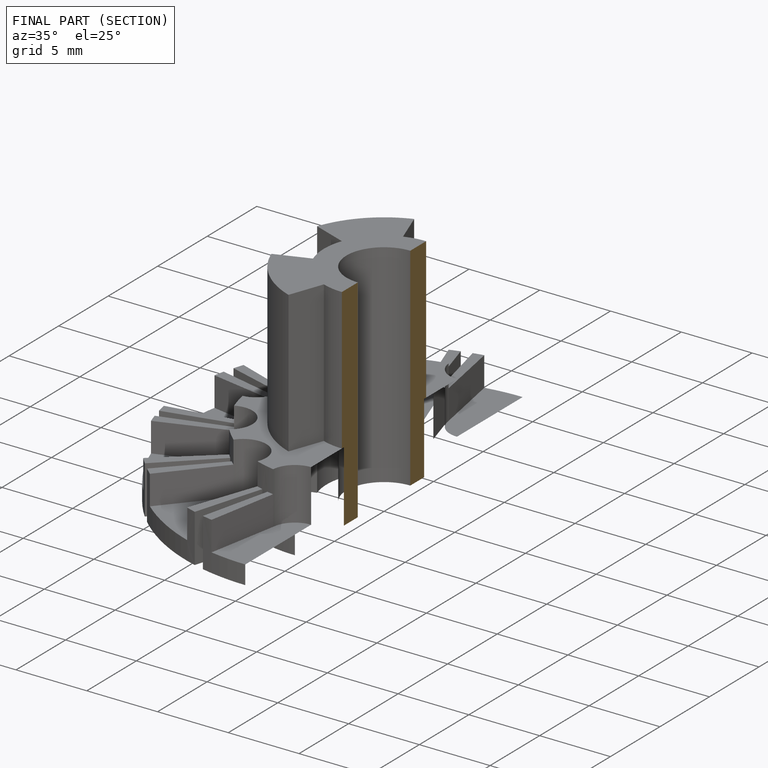
[diagram: finished part — half-section view (interior)]
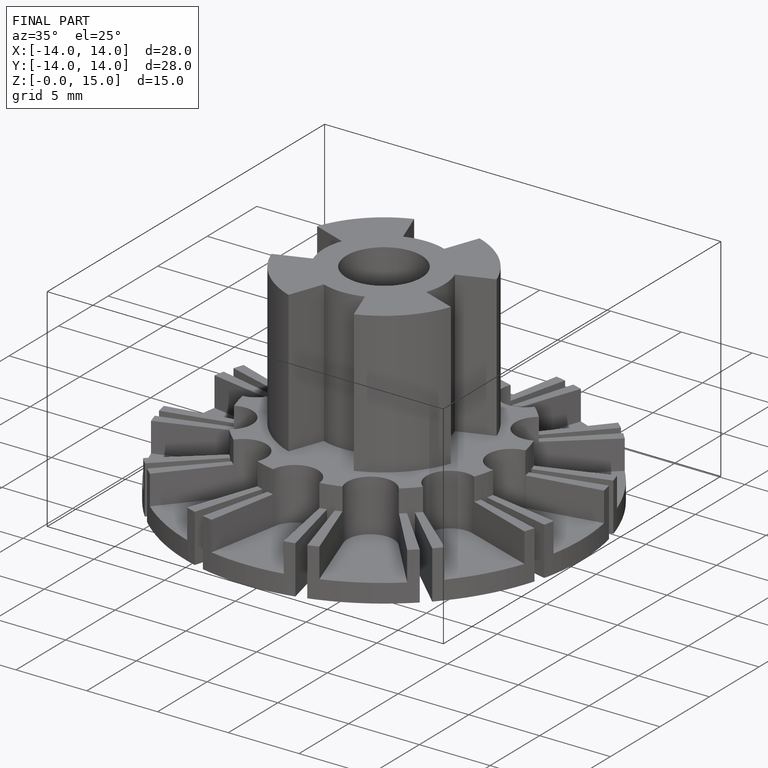
[diagram: finished part — iso view with bounding-box wireframe]
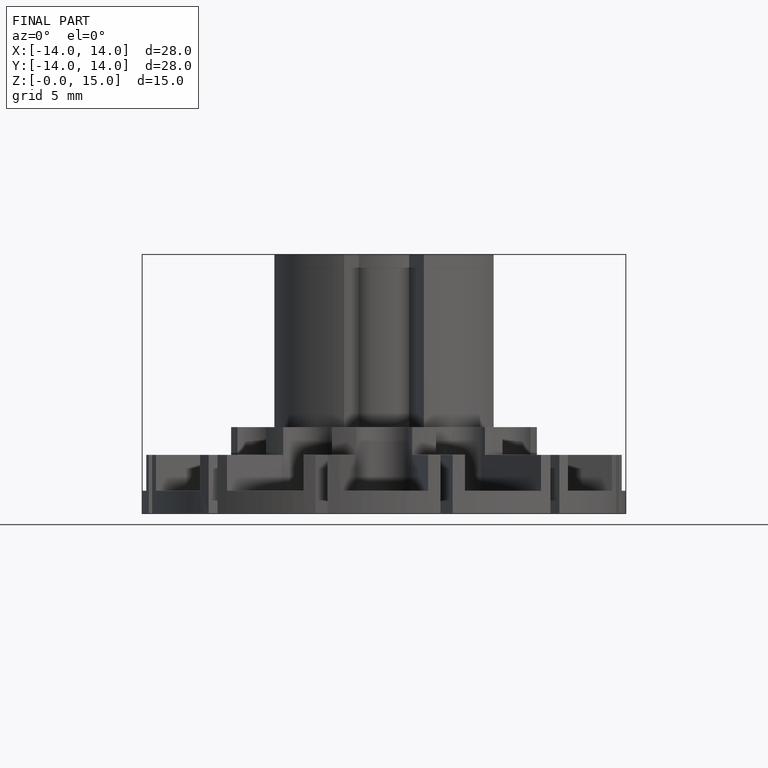
[diagram: finished part — front view with bounding-box wireframe]
